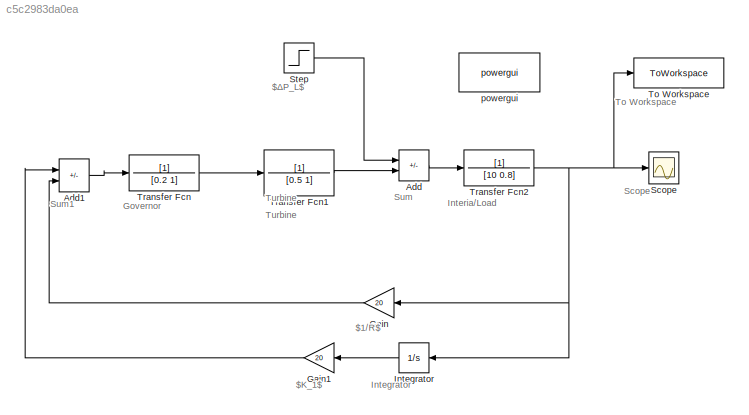
MODEL slx_c5c2983da0ea
KIND model
CONFIG AbsTol = auto
CONFIG EnableMultiTasking = off
CONFIG FixedStep = auto
CONFIG MaxStep = auto
CONFIG MinStep = auto
CONFIG RelTol = 1e-3
CONFIG SampleTimeConstraint = Unconstrained
CONFIG Solver = VariableStepAuto
CONFIG SolverName = VariableStepAuto
CONFIG StartTime = 0.0
CONFIG StopTime = 30
BLOCK [Sum] Add
  IconShape = rectangular
  Inputs = -+
  Ports = [2, 1]
BLOCK [Sum] Add1
  IconShape = rectangular
  Inputs = --
  Ports = [2, 1]
BLOCK [Gain] Gain
  Gain = 20
  NameLocation = top
BLOCK [Gain] Gain1
  Gain = 20
  NameLocation = top
BLOCK [Integrator] Integrator
  NameLocation = top
  Ports = [1, 1]
BLOCK [Scope] Scope
  Floating = off
  NumInputPorts = 1
  Ports = [1]
  ScopeSpecificationString = Simulink.scopes.TimeScopeBlockCfg('CurrentConfiguration', extmgr.ConfigurationSet(extmgr.Configuration('Core','General UI',true),extmgr.Configuration('Core','Source UI',true),extmgr.Configuration('Sources','WiredSimulink',true),extmgr.Configuration('Visuals','Time Domain',true,'SerializedDisplays',{struct('MinYLimReal','-0.06351','MaxYLimReal','0.01054','YLabelReal','','MinYLimMag','0.00000','MaxY...<+1333ch>
BLOCK [Step] Step
  After = 0.8
  SampleTime = 0
  Time = 0
BLOCK [ToWorkspace] To Workspace
  FixptAsFi = on
  MaxDataPoints = inf
  Ports = [1]
  SampleTime = -1
  SaveFormat = Timeseries
  VariableName = simout
BLOCK [TransferFcn] Transfer Fcn
  Denominator = [0.2 1]
BLOCK [TransferFcn] Transfer Fcn1
  Denominator = [0.5 1]
BLOCK [TransferFcn] Transfer Fcn2
  Denominator = [10 0.8]
BLOCK [Reference] powergui  REF=powerlib/powergui
  Ports = []
  Priority = 1
  SourceBlock = powerlib/powergui
  SourceProductBaseCode = PS
  SourceType = PSB option menu block
ANNOTATION (root): Integrator
ANNOTATION (root): $1/R$
ANNOTATION (root): $K_1$
ANNOTATION (root): $ΔP_L$
ANNOTATION (root): Governor
ANNOTATION (root): Interia/Load
ANNOTATION (root): Scope
ANNOTATION (root): Sum
ANNOTATION (root): Sum1
ANNOTATION (root): To Workspace
ANNOTATION (root): Turbine
LINE Add1:1 -> Transfer Fcn:1
LINE Add:1 -> Transfer Fcn2:1
LINE Gain1:1 -> Add1:1
LINE Gain:1 -> Add1:2
LINE Integrator:1 -> Gain1:1
LINE Step:1 -> Add:1
LINE Transfer Fcn1:1 -> Add:2
NET Transfer Fcn2:1 -> Gain:1, Integrator:1, Scope:1, To Workspace:1
LINE Transfer Fcn:1 -> Transfer Fcn1:1
note: NET lines group one-source signal fan-out (src -> all destinations, sorted); 1:1 wires keep LINE
